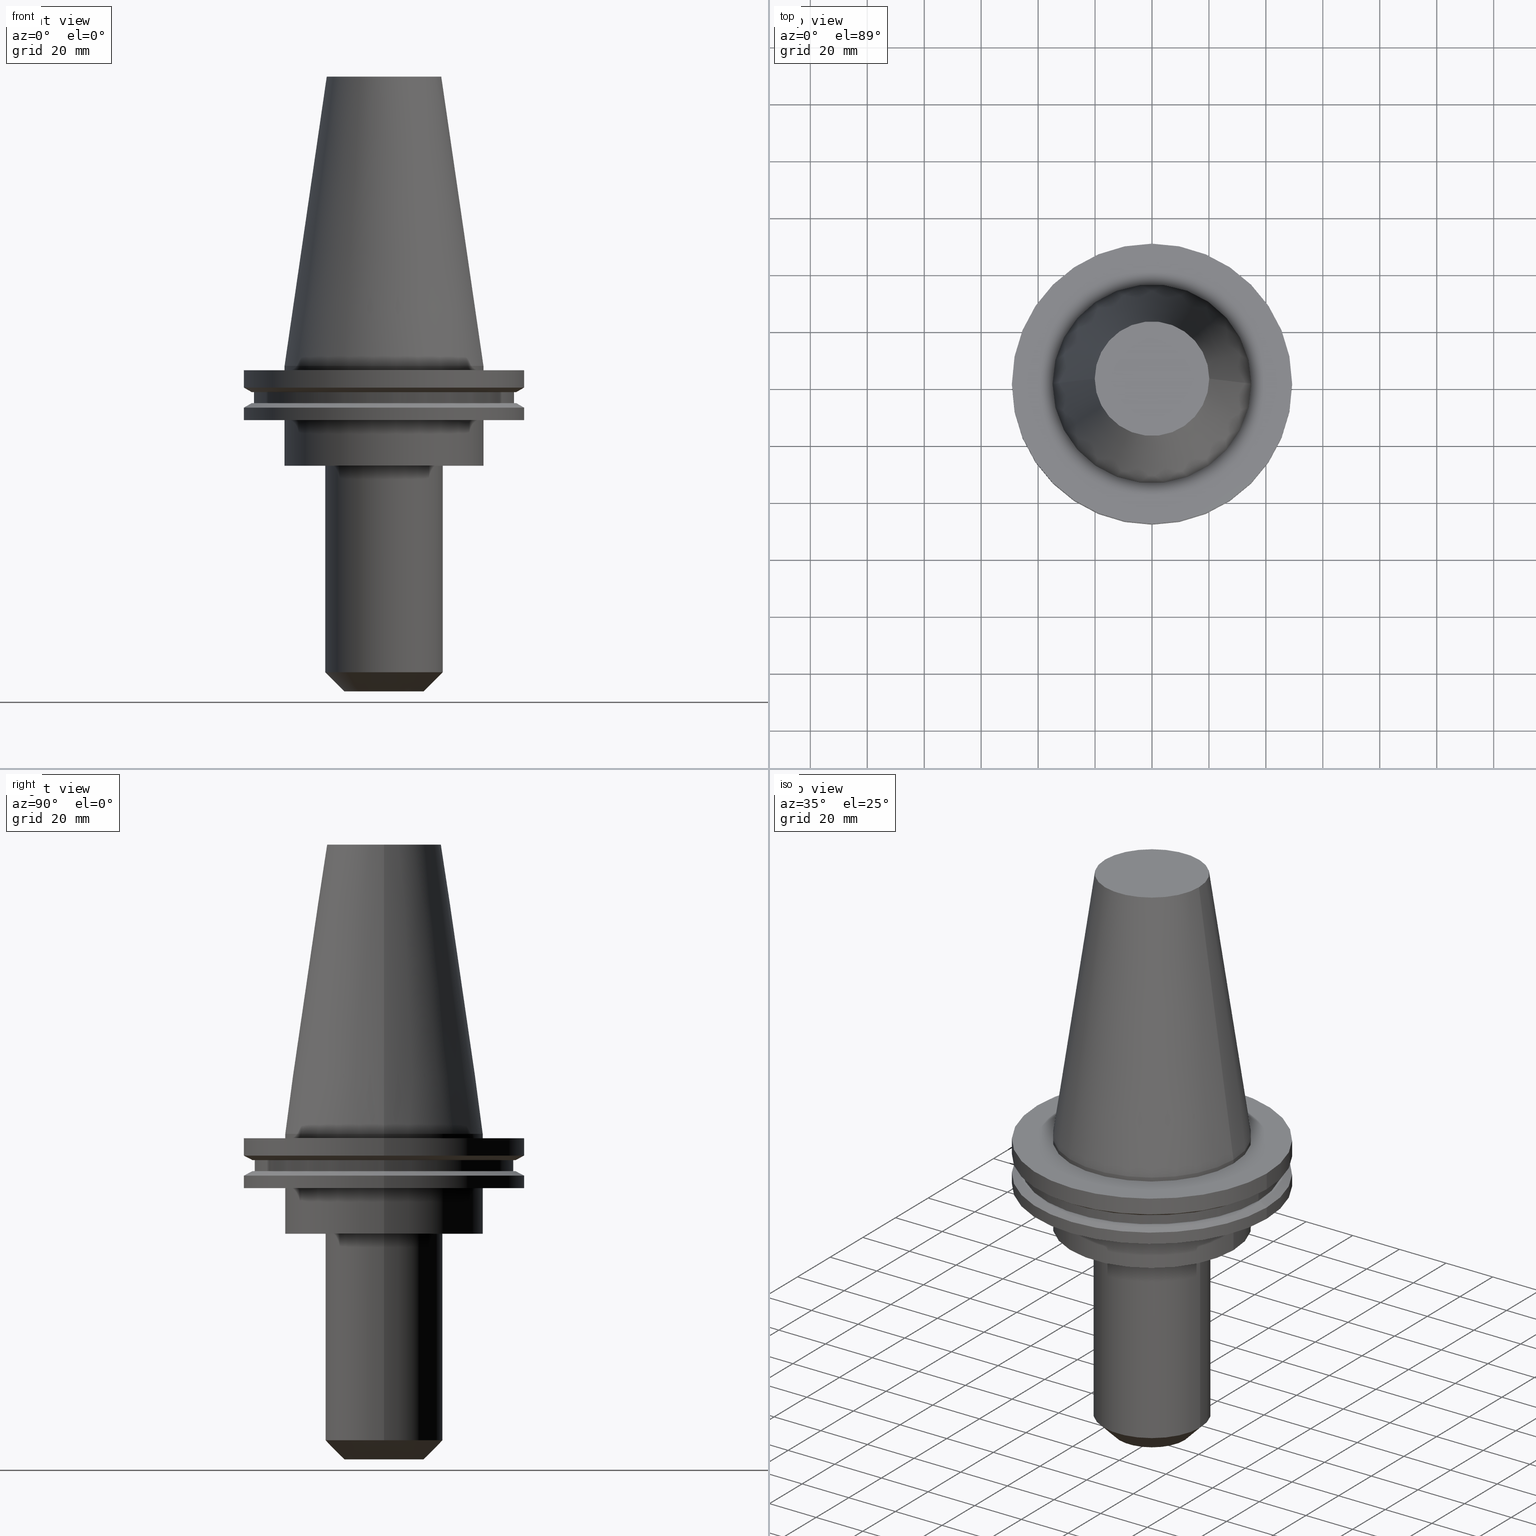
[diagram: canonical four-view strip — front | top / right | iso, engineering-drawing reading convention]
A machine part, canonical four-view strip (front | top / right | iso — engineering-drawing reading convention). The complete STEP part file that produces these views, byte-faithful:
ISO-10303-21;
HEADER;
FILE_DESCRIPTION (( 'STEP AP203' ),
    '1' );
FILE_NAME ('BCV50-EM_625-4_5.stp',
    '2022-03-03T16:44:21',
    ( '' ),
    ( '' ),
    'SwSTEP 2.0',
    'SolidWorks 2021',
    '' );
FILE_SCHEMA (( 'CONFIG_CONTROL_DESIGN' ));
ENDSEC;

DATA;
#1 = FACE_OUTER_BOUND ( 'NONE', #496, .T. ) ;
#2 = FACE_OUTER_BOUND ( 'NONE', #224, .T. ) ;
#3 = DIRECTION ( 'NONE',  ( -0.000000000000000000, -0.000000000000000000, 1.000000000000000000 ) ) ;
#4 = ORIENTED_EDGE ( 'NONE', *, *, #390, .F. ) ;
#5 = ADVANCED_FACE ( 'NONE', ( #507 ), #197, .F. ) ;
#6 = CARTESIAN_POINT ( 'NONE',  ( 0.000000000000000000, 0.000000000000000000, 101.5999999999999943 ) ) ;
#7 = EDGE_CURVE ( 'NONE', #578, #457, #670, .T. ) ;
#8 = DIRECTION ( 'NONE',  ( 1.000000000000000000, 0.000000000000000000, 0.000000000000000000 ) ) ;
#9 = LOCAL_TIME ( 10, 44, 21.00000000000000000, #72 ) ;
#10 = PERSON_AND_ORGANIZATION_ROLE ( 'classification_officer' ) ;
#11 = LINE ( 'NONE', #534, #520 ) ;
#12 = AXIS2_PLACEMENT_3D ( 'NONE', #279, #806, #411 ) ;
#13 = CARTESIAN_POINT ( 'NONE',  ( 0.000000000000000000, 0.000000000000000000, 101.5999999999999943 ) ) ;
#14 = AXIS2_PLACEMENT_3D ( 'NONE', #619, #172, #35 ) ;
#15 = CARTESIAN_POINT ( 'NONE',  ( 20.64999999999999147, 0.000000000000000000, 0.000000000000000000 ) ) ;
#16 = DIRECTION ( 'NONE',  ( -0.000000000000000000, -0.000000000000000000, 1.000000000000000000 ) ) ;
#17 = PERSON_AND_ORGANIZATION ( #393, #486 ) ;
#18 = LINE ( 'NONE', #221, #270 ) ;
#19 = LINE ( 'NONE', #67, #572 ) ;
#20 = PERSON_AND_ORGANIZATION_ROLE ( 'creator' ) ;
#21 = ORIENTED_EDGE ( 'NONE', *, *, #467, .F. ) ;
#22 = FACE_OUTER_BOUND ( 'NONE', #119, .T. ) ;
#23 = CIRCLE ( 'NONE', #466, 20.64999999999999147 ) ;
#24 = LINE ( 'NONE', #227, #375 ) ;
#25 = CIRCLE ( 'NONE', #333, 34.92499999999999716 ) ;
#26 = CIRCLE ( 'NONE', #506, 45.64500000000000313 ) ;
#27 = EDGE_LOOP ( 'NONE', ( #310, #188 ) ) ;
#28 = CARTESIAN_POINT ( 'NONE',  ( -46.43919780457007818, 0.000000000000000000, -13.05499999999999794 ) ) ;
#29 = DIRECTION ( 'NONE',  ( -0.000000000000000000, -0.000000000000000000, 1.000000000000000000 ) ) ;
#30 = EDGE_LOOP ( 'NONE', ( #418, #378 ) ) ;
#31 = DIRECTION ( 'NONE',  ( 0.000000000000000000, 0.000000000000000000, -1.000000000000000000 ) ) ;
#32 = ADVANCED_FACE ( 'NONE', ( #56 ), #249, .T. ) ;
#33 = DIRECTION ( 'NONE',  ( 1.000000000000000000, 0.000000000000000000, 0.000000000000000000 ) ) ;
#34 = VERTEX_POINT ( 'NONE', #327 ) ;
#35 = DIRECTION ( 'NONE',  ( 1.000000000000000000, 0.000000000000000000, 0.000000000000000000 ) ) ;
#36 = VERTEX_POINT ( 'NONE', #181 ) ;
#37 = FACE_OUTER_BOUND ( 'NONE', #234, .T. ) ;
#38 = ORIENTED_EDGE ( 'NONE', *, *, #543, .F. ) ;
#39 = VECTOR ( 'NONE', #70, 1000.000000000000000 ) ;
#40 = PRODUCT ( 'BCV50-EM_625-4_5', 'BCV50-EM_625-4_5', '', ( #637 ) ) ;
#41 = PLANE ( 'NONE',  #796 ) ;
#42 = ORIENTED_EDGE ( 'NONE', *, *, #427, .F. ) ;
#43 = DIRECTION ( 'NONE',  ( -1.000000000000000000, 0.000000000000000000, 0.000000000000000000 ) ) ;
#44 = ORIENTED_EDGE ( 'NONE', *, *, #795, .F. ) ;
#45 = EDGE_CURVE ( 'NONE', #825, #254, #305, .T. ) ;
#46 = CARTESIAN_POINT ( 'NONE',  ( 0.000000000000000000, 45.64500000000000313, -13.05499999999999794 ) ) ;
#47 = ORIENTED_EDGE ( 'NONE', *, *, #113, .T. ) ;
#48 = DIRECTION ( 'NONE',  ( 0.000000000000000000, 0.000000000000000000, -1.000000000000000000 ) ) ;
#49 = DIRECTION ( 'NONE',  ( -0.000000000000000000, -0.000000000000000000, 1.000000000000000000 ) ) ;
#50 = ORIENTED_EDGE ( 'NONE', *, *, #178, .F. ) ;
#51 = CIRCLE ( 'NONE', #606, 20.64999999999999503 ) ;
#52 = ORIENTED_EDGE ( 'NONE', *, *, #605, .F. ) ;
#53 = DIRECTION ( 'NONE',  ( 0.1443082272672999988, 1.767266086135277066E-17, -0.9895327864921755756 ) ) ;
#54 = EDGE_LOOP ( 'NONE', ( #690, #817, #121, #833 ) ) ;
#55 = LINE ( 'NONE', #656, #39 ) ;
#56 = FACE_OUTER_BOUND ( 'NONE', #422, .T. ) ;
#57 = DIRECTION ( 'NONE',  ( -0.000000000000000000, -0.000000000000000000, 1.000000000000000000 ) ) ;
#58 = ORIENTED_EDGE ( 'NONE', *, *, #182, .F. ) ;
#59 = CARTESIAN_POINT ( 'NONE',  ( -49.21499999999999631, 6.027099222003697826E-15, 101.5999999999999943 ) ) ;
#60 = ORIENTED_EDGE ( 'NONE', *, *, #521, .T. ) ;
#61 = AXIS2_PLACEMENT_3D ( 'NONE', #604, #233, #497 ) ;
#62 = PLANE ( 'NONE',  #424 ) ;
#63 = AXIS2_PLACEMENT_3D ( 'NONE', #410, #743, #801 ) ;
#64 = DIRECTION ( 'NONE',  ( -0.000000000000000000, -0.000000000000000000, 1.000000000000000000 ) ) ;
#65 = EDGE_CURVE ( 'NONE', #576, #36, #775, .T. ) ;
#66 = APPROVAL_STATUS ( 'not_yet_approved' ) ;
#67 = CARTESIAN_POINT ( 'NONE',  ( 49.21499999999999631, 0.000000000000000000, 101.5999999999999943 ) ) ;
#68 = EDGE_LOOP ( 'NONE', ( #462, #628, #110, #370 ) ) ;
#69 = ADVANCED_FACE ( 'NONE', ( #640 ), #518, .T. ) ;
#70 = DIRECTION ( 'NONE',  ( -0.000000000000000000, -0.000000000000000000, 1.000000000000000000 ) ) ;
#71 = CARTESIAN_POINT ( 'NONE',  ( 0.000000000000000000, 0.000000000000000000, 0.000000000000000000 ) ) ;
#72 = COORDINATED_UNIVERSAL_TIME_OFFSET ( 6, 0, .BEHIND. ) ;
#73 = DIRECTION ( 'NONE',  ( -0.000000000000000000, -0.000000000000000000, 1.000000000000000000 ) ) ;
#74 = DIRECTION ( 'NONE',  ( 1.000000000000000000, 0.000000000000000000, 0.000000000000000000 ) ) ;
#75 = VECTOR ( 'NONE', #851, 1000.000000000000000 ) ;
#76 = VECTOR ( 'NONE', #406, 1000.000000000000000 ) ;
#77 = VECTOR ( 'NONE', #275, 1000.000000000000000 ) ;
#78 = AXIS2_PLACEMENT_3D ( 'NONE', #694, #753, #490 ) ;
#79 = DIRECTION ( 'NONE',  ( -0.000000000000000000, -0.000000000000000000, 1.000000000000000000 ) ) ;
#80 = DIRECTION ( 'NONE',  ( -0.000000000000000000, -0.000000000000000000, 1.000000000000000000 ) ) ;
#81 = CARTESIAN_POINT ( 'NONE',  ( 0.000000000000000000, 0.000000000000000000, -13.05499999999999794 ) ) ;
#82 = FACE_BOUND ( 'NONE', #307, .T. ) ;
#83 = ORIENTED_EDGE ( 'NONE', *, *, #161, .T. ) ;
#84 = CARTESIAN_POINT ( 'NONE',  ( -49.21499999999998920, 6.027099222003697037E-15, -19.04999999999999716 ) ) ;
#85 = DIRECTION ( 'NONE',  ( -0.000000000000000000, -0.000000000000000000, 1.000000000000000000 ) ) ;
#86 = UNCERTAINTY_MEASURE_WITH_UNIT (LENGTH_MEASURE( 1.000000000000000082E-05 ), #193, 'distance_accuracy_value', 'NONE');
#87 = ADVANCED_FACE ( 'NONE', ( #636 ), #203, .T. ) ;
#88 = CIRCLE ( 'NONE', #562, 34.92499999999999716 ) ;
#89 = FACE_OUTER_BOUND ( 'NONE', #30, .T. ) ;
#90 = AXIS2_PLACEMENT_3D ( 'NONE', #719, #790, #381 ) ;
#91 = CARTESIAN_POINT ( 'NONE',  ( 46.43919780457007818, 0.000000000000000000, -9.204999999999991189 ) ) ;
#92 = ORIENTED_EDGE ( 'NONE', *, *, #477, .T. ) ;
#93 = DIRECTION ( 'NONE',  ( 1.000000000000000000, 0.000000000000000000, 0.000000000000000000 ) ) ;
#94 = ADVANCED_FACE ( 'NONE', ( #343, #2 ), #340, .F. ) ;
#95 = FACE_OUTER_BOUND ( 'NONE', #755, .T. ) ;
#96 = EDGE_LOOP ( 'NONE', ( #220, #655, #445, #430 ) ) ;
#97 = APPROVAL_PERSON_ORGANIZATION ( #401, #294, #338 ) ;
#98 = CARTESIAN_POINT ( 'NONE',  ( -20.64999999999999147, 2.528895640239283334E-15, 0.000000000000000000 ) ) ;
#99 = CC_DESIGN_DATE_AND_TIME_ASSIGNMENT ( #263, #525, ( #561 ) ) ;
#100 = DIRECTION ( 'NONE',  ( 0.000000000000000000, 0.000000000000000000, -1.000000000000000000 ) ) ;
#101 = DIRECTION ( 'NONE',  ( -0.000000000000000000, -0.000000000000000000, 1.000000000000000000 ) ) ;
#102 = ORIENTED_EDGE ( 'NONE', *, *, #218, .F. ) ;
#103 = FACE_OUTER_BOUND ( 'NONE', #96, .T. ) ;
#104 = ORIENTED_EDGE ( 'NONE', *, *, #674, .T. ) ;
#105 = DIRECTION ( 'NONE',  ( -0.000000000000000000, -0.000000000000000000, 1.000000000000000000 ) ) ;
#106 = EDGE_LOOP ( 'NONE', ( #426, #532, #47, #238 ) ) ;
#107 = DIRECTION ( 'NONE',  ( 1.000000000000000000, 0.000000000000000000, 0.000000000000000000 ) ) ;
#108 = EDGE_CURVE ( 'NONE', #173, #704, #793, .T. ) ;
#109 = CARTESIAN_POINT ( 'NONE',  ( 0.000000000000000000, 0.000000000000000000, 101.5999999999999943 ) ) ;
#110 = ORIENTED_EDGE ( 'NONE', *, *, #662, .T. ) ;
#111 = CC_DESIGN_APPROVAL ( #514, ( #561 ) ) ;
#112 = ORIENTED_EDGE ( 'NONE', *, *, #750, .T. ) ;
#113 = EDGE_CURVE ( 'NONE', #316, #292, #523, .T. ) ;
#114 =( NAMED_UNIT ( * ) PLANE_ANGLE_UNIT ( ) SI_UNIT ( $, .RADIAN. ) );
#115 = AXIS2_PLACEMENT_3D ( 'NONE', #209, #79, #213 ) ;
#116 = CONICAL_SURFACE ( 'NONE', #595, 49.21499999999998920, 1.047197551196554333 ) ;
#117 = AXIS2_PLACEMENT_3D ( 'NONE', #672, #139, #481 ) ;
#118 = DIRECTION ( 'NONE',  ( 1.000000000000000000, 0.000000000000000000, 0.000000000000000000 ) ) ;
#119 = EDGE_LOOP ( 'NONE', ( #746, #44 ) ) ;
#120 = AXIS2_PLACEMENT_3D ( 'NONE', #251, #123, #644 ) ;
#121 = ORIENTED_EDGE ( 'NONE', *, *, #317, .F. ) ;
#122 = CARTESIAN_POINT ( 'NONE',  ( 0.000000000000000000, 0.000000000000000000, 101.5999999999999943 ) ) ;
#123 = DIRECTION ( 'NONE',  ( 0.000000000000000000, 0.000000000000000000, -1.000000000000000000 ) ) ;
#124 = ORIENTED_EDGE ( 'NONE', *, *, #409, .F. ) ;
#125 = ADVANCED_FACE ( 'NONE', ( #141 ), #527, .T. ) ;
#126 = ORIENTED_EDGE ( 'NONE', *, *, #357, .T. ) ;
#127 = APPROVAL_ROLE ( '' ) ;
#128 = AXIS2_PLACEMENT_3D ( 'NONE', #148, #416, #551 ) ;
#129 = CARTESIAN_POINT ( 'NONE',  ( -20.10819343178871321, 0.000000000000000000, 101.5999999999999801 ) ) ;
#130 = VECTOR ( 'NONE', #53, 999.9999999999998863 ) ;
#131 = CIRCLE ( 'NONE', #142, 49.21500000000000341 ) ;
#132 = DIRECTION ( 'NONE',  ( -0.000000000000000000, -0.000000000000000000, 1.000000000000000000 ) ) ;
#133 = EDGE_CURVE ( 'NONE', #292, #316, #712, .T. ) ;
#134 = DIRECTION ( 'NONE',  ( 1.000000000000000000, 0.000000000000000000, 0.000000000000000000 ) ) ;
#135 = CC_DESIGN_DATE_AND_TIME_ASSIGNMENT ( #204, #149, ( #267 ) ) ;
#136 = FACE_OUTER_BOUND ( 'NONE', #205, .T. ) ;
#137 = DIRECTION ( 'NONE',  ( -1.000000000000000000, 0.000000000000000000, -0.000000000000000000 ) ) ;
#138 = ORIENTED_EDGE ( 'NONE', *, *, #300, .F. ) ;
#139 = DIRECTION ( 'NONE',  ( -0.000000000000000000, -0.000000000000000000, 1.000000000000000000 ) ) ;
#140 = AXIS2_PLACEMENT_3D ( 'NONE', #815, #618, #291 ) ;
#141 = FACE_OUTER_BOUND ( 'NONE', #598, .T. ) ;
#142 = AXIS2_PLACEMENT_3D ( 'NONE', #303, #101, #225 ) ;
#143 = APPROVAL_DATE_TIME ( #675, #843 ) ;
#144 = ORIENTED_EDGE ( 'NONE', *, *, #178, .T. ) ;
#145 = DIRECTION ( 'NONE',  ( 1.000000000000000000, 0.000000000000000000, 0.000000000000000000 ) ) ;
#146 = AXIS2_PLACEMENT_3D ( 'NONE', #13, #80, #597 ) ;
#147 = EDGE_CURVE ( 'NONE', #556, #576, #530, .T. ) ;
#148 = CARTESIAN_POINT ( 'NONE',  ( 0.000000000000000000, 0.000000000000000000, -1.499999999999987566 ) ) ;
#149 = DATE_TIME_ROLE ( 'classification_date' ) ;
#150 = ORIENTED_EDGE ( 'NONE', *, *, #65, .F. ) ;
#151 = DIRECTION ( 'NONE',  ( -0.000000000000000000, -0.000000000000000000, 1.000000000000000000 ) ) ;
#152 = FACE_OUTER_BOUND ( 'NONE', #574, .T. ) ;
#153 = EDGE_CURVE ( 'NONE', #432, #292, #414, .T. ) ;
#154 = APPROVAL_PERSON_ORGANIZATION ( #855, #514, #127 ) ;
#155 = EDGE_LOOP ( 'NONE', ( #812, #581, #820, #138 ) ) ;
#156 = ORIENTED_EDGE ( 'NONE', *, *, #212, .F. ) ;
#157 = DIRECTION ( 'NONE',  ( 1.000000000000000000, 0.000000000000000000, 0.000000000000000000 ) ) ;
#158 = DIRECTION ( 'NONE',  ( -0.000000000000000000, -0.000000000000000000, 1.000000000000000000 ) ) ;
#159 = CIRCLE ( 'NONE', #621, 45.64500000000000313 ) ;
#160 = ORIENTED_EDGE ( 'NONE', *, *, #464, .T. ) ;
#161 = EDGE_CURVE ( 'NONE', #811, #798, #371, .T. ) ;
#162 = LINE ( 'NONE', #98, #560 ) ;
#163 = ORIENTED_EDGE ( 'NONE', *, *, #383, .T. ) ;
#164 = CARTESIAN_POINT ( 'NONE',  ( -34.92499999999999716, 4.277078946022130887E-15, -35.04999999999999716 ) ) ;
#165 = CARTESIAN_POINT ( 'NONE',  ( 20.10819343178871321, 3.369811209154858606E-15, 101.5999999999999801 ) ) ;
#166 = EDGE_LOOP ( 'NONE', ( #345, #392 ) ) ;
#167 = EDGE_CURVE ( 'NONE', #432, #749, #451, .T. ) ;
#168 = DIRECTION ( 'NONE',  ( 1.000000000000000000, 0.000000000000000000, 0.000000000000000000 ) ) ;
#169 = ORIENTED_EDGE ( 'NONE', *, *, #701, .T. ) ;
#170 = CARTESIAN_POINT ( 'NONE',  ( 0.000000000000000000, 0.000000000000000000, 101.5999999999999801 ) ) ;
#171 = ORIENTED_EDGE ( 'NONE', *, *, #404, .F. ) ;
#172 = DIRECTION ( 'NONE',  ( -0.000000000000000000, -0.000000000000000000, 1.000000000000000000 ) ) ;
#173 = VERTEX_POINT ( 'NONE', #407 ) ;
#174 = ADVANCED_FACE ( 'NONE', ( #653 ), #657, .F. ) ;
#175 = CARTESIAN_POINT ( 'NONE',  ( 0.000000000000000000, 0.000000000000000000, -19.04999999999999716 ) ) ;
#176 = AXIS2_PLACEMENT_3D ( 'NONE', #744, #559, #425 ) ;
#177 = DIRECTION ( 'NONE',  ( 1.000000000000000000, 0.000000000000000000, 0.000000000000000000 ) ) ;
#178 = EDGE_CURVE ( 'NONE', #513, #34, #673, .T. ) ;
#179 = CARTESIAN_POINT ( 'NONE',  ( 0.000000000000000000, 0.000000000000000000, -13.05499999999999794 ) ) ;
#180 = CARTESIAN_POINT ( 'NONE',  ( 34.92499999999999716, 0.000000000000000000, -19.04999999999999716 ) ) ;
#181 = CARTESIAN_POINT ( 'NONE',  ( 49.21499999999998920, 0.000000000000000000, -14.65761014474876944 ) ) ;
#182 = EDGE_CURVE ( 'NONE', #194, #811, #19, .T. ) ;
#183 = DIRECTION ( 'NONE',  ( 1.000000000000000000, 0.000000000000000000, 0.000000000000000000 ) ) ;
#184 = CC_DESIGN_APPROVAL ( #843, ( #267 ) ) ;
#185 = DIRECTION ( 'NONE',  ( 1.000000000000000000, 0.000000000000000000, 0.000000000000000000 ) ) ;
#186 = CARTESIAN_POINT ( 'NONE',  ( 0.000000000000000000, 0.000000000000000000, 101.5999999999999943 ) ) ;
#187 = COORDINATED_UNIVERSAL_TIME_OFFSET ( 6, 0, .BEHIND. ) ;
#188 = ORIENTED_EDGE ( 'NONE', *, *, #592, .F. ) ;
#189 = AXIS2_PLACEMENT_3D ( 'NONE', #842, #510, #444 ) ;
#190 = CARTESIAN_POINT ( 'NONE',  ( 0.000000000000000000, 0.000000000000000000, -9.204999999999991189 ) ) ;
#191 = AXIS2_PLACEMENT_3D ( 'NONE', #293, #495, #759 ) ;
#192 = DIRECTION ( 'NONE',  ( 1.000000000000000000, 0.000000000000000000, 0.000000000000000000 ) ) ;
#193 =( LENGTH_UNIT ( ) NAMED_UNIT ( * ) SI_UNIT ( .MILLI., .METRE. ) );
#194 = VERTEX_POINT ( 'NONE', #791 ) ;
#195 = ADVANCED_FACE ( 'NONE', ( #470 ), #730, .T. ) ;
#196 = DIRECTION ( 'NONE',  ( 1.000000000000000000, 0.000000000000000000, 0.000000000000000000 ) ) ;
#197 = PLANE ( 'NONE',  #90 ) ;
#198 = CARTESIAN_POINT ( 'NONE',  ( -46.43919780457007818, 5.687161494633754392E-15, -9.204999999999991189 ) ) ;
#199 = VERTEX_POINT ( 'NONE', #215 ) ;
#200 = DIRECTION ( 'NONE',  ( -0.7071067811865486830, 8.659560562354947649E-17, 0.7071067811865464625 ) ) ;
#201 = CONICAL_SURFACE ( 'NONE', #189, 13.94999999999997620, 0.7853981633974498333 ) ;
#202 = CARTESIAN_POINT ( 'NONE',  ( -49.21499999999998920, 6.027099222003697037E-15, 101.5999999999999943 ) ) ;
#203 = CONICAL_SURFACE ( 'NONE', #120, 34.92499999999999005, 0.1448138465474119452 ) ;
#204 = DATE_AND_TIME ( #601, #9 ) ;
#205 = EDGE_LOOP ( 'NONE', ( #42, #226, #852, #784 ) ) ;
#206 = DIRECTION ( 'NONE',  ( -0.8660254037844169472, 0.000000000000000000, -0.5000000000000375255 ) ) ;
#207 = DIRECTION ( 'NONE',  ( -0.000000000000000000, -0.000000000000000000, 1.000000000000000000 ) ) ;
#208 = ORIENTED_EDGE ( 'NONE', *, *, #212, .T. ) ;
#209 = CARTESIAN_POINT ( 'NONE',  ( 0.000000000000000000, 0.000000000000000000, -35.04999999999999716 ) ) ;
#210 = DIRECTION ( 'NONE',  ( -0.000000000000000000, -0.000000000000000000, 1.000000000000000000 ) ) ;
#211 = ORIENTED_EDGE ( 'NONE', *, *, #617, .T. ) ;
#212 = EDGE_CURVE ( 'NONE', #695, #358, #23, .T. ) ;
#213 = DIRECTION ( 'NONE',  ( 1.000000000000000000, 0.000000000000000000, 0.000000000000000000 ) ) ;
#214 = CONICAL_SURFACE ( 'NONE', #769, 13.94999999999997620, 0.7853981633974498333 ) ;
#215 = CARTESIAN_POINT ( 'NONE',  ( 49.21499999999998920, 0.000000000000000000, -19.04999999999999716 ) ) ;
#216 = PERSON_AND_ORGANIZATION_ROLE ( 'design_supplier' ) ;
#217 = CARTESIAN_POINT ( 'NONE',  ( -34.92499999999999005, 0.000000000000000000, 0.000000000000000000 ) ) ;
#218 = EDGE_CURVE ( 'NONE', #330, #173, #531, .T. ) ;
#219 = DIRECTION ( 'NONE',  ( 1.000000000000000000, 0.000000000000000000, 0.000000000000000000 ) ) ;
#220 = ORIENTED_EDGE ( 'NONE', *, *, #765, .F. ) ;
#221 = CARTESIAN_POINT ( 'NONE',  ( -45.64500000000000313, 5.589900314708094957E-15, 101.5999999999999943 ) ) ;
#222 = CYLINDRICAL_SURFACE ( 'NONE', #140, 49.21499999999998920 ) ;
#223 =( GEOMETRIC_REPRESENTATION_CONTEXT ( 3 ) GLOBAL_UNCERTAINTY_ASSIGNED_CONTEXT ( ( #86 ) ) GLOBAL_UNIT_ASSIGNED_CONTEXT ( ( #193, #114, #715 ) ) REPRESENTATION_CONTEXT ( 'NONE', 'WORKASPACE' ) );
#224 = EDGE_LOOP ( 'NONE', ( #83, #648 ) ) ;
#225 = DIRECTION ( 'NONE',  ( 1.000000000000000000, 0.000000000000000000, 0.000000000000000000 ) ) ;
#226 = ORIENTED_EDGE ( 'NONE', *, *, #7, .F. ) ;
#227 = CARTESIAN_POINT ( 'NONE',  ( 34.92499999999999005, 0.000000000000000000, 101.5999999999999943 ) ) ;
#228 = CIRCLE ( 'NONE', #115, 34.92499999999999716 ) ;
#229 = CC_DESIGN_PERSON_AND_ORGANIZATION_ASSIGNMENT ( #742, #10, ( #267 ) ) ;
#230 = AXIS2_PLACEMENT_3D ( 'NONE', #81, #269, #599 ) ;
#231 = FACE_BOUND ( 'NONE', #528, .T. ) ;
#232 = ORIENTED_EDGE ( 'NONE', *, *, #308, .F. ) ;
#233 = DIRECTION ( 'NONE',  ( 0.000000000000000000, 0.000000000000000000, -1.000000000000000000 ) ) ;
#234 = EDGE_LOOP ( 'NONE', ( #384, #160, #714, #500 ) ) ;
#235 = CYLINDRICAL_SURFACE ( 'NONE', #259, 20.64999999999999147 ) ;
#236 = ORIENTED_EDGE ( 'NONE', *, *, #252, .F. ) ;
#237 = CARTESIAN_POINT ( 'NONE',  ( 0.000000000000000000, 0.000000000000000000, 0.000000000000000000 ) ) ;
#238 = ORIENTED_EDGE ( 'NONE', *, *, #153, .F. ) ;
#239 = CARTESIAN_POINT ( 'NONE',  ( 0.000000000000000000, 0.000000000000000000, 101.5999999999999943 ) ) ;
#240 = ORIENTED_EDGE ( 'NONE', *, *, #701, .F. ) ;
#241 = LINE ( 'NONE', #505, #75 ) ;
#242 = CARTESIAN_POINT ( 'NONE',  ( 0.000000000000000000, 0.000000000000000000, -14.65761014474876944 ) ) ;
#243 = AXIS2_PLACEMENT_3D ( 'NONE', #802, #210, #473 ) ;
#244 = DIRECTION ( 'NONE',  ( 1.000000000000000000, 0.000000000000000000, 0.000000000000000000 ) ) ;
#245 = CIRCLE ( 'NONE', #838, 34.92499999999999005 ) ;
#246 = ORIENTED_EDGE ( 'NONE', *, *, #467, .T. ) ;
#247 = ADVANCED_FACE ( 'NONE', ( #337 ), #479, .F. ) ;
#248 = AXIS2_PLACEMENT_3D ( 'NONE', #774, #844, #192 ) ;
#249 = CYLINDRICAL_SURFACE ( 'NONE', #428, 49.21499999999999631 ) ;
#250 = CARTESIAN_POINT ( 'NONE',  ( 49.21499999999998920, 6.027099222003697037E-15, -14.65761014474876944 ) ) ;
#251 = CARTESIAN_POINT ( 'NONE',  ( 0.000000000000000000, 0.000000000000000000, 0.000000000000000000 ) ) ;
#252 = EDGE_CURVE ( 'NONE', #798, #811, #285, .T. ) ;
#253 = DIRECTION ( 'NONE',  ( 0.8660254037844273833, 0.000000000000000000, 0.5000000000000195399 ) ) ;
#254 = VERTEX_POINT ( 'NONE', #435 ) ;
#255 = ORIENTED_EDGE ( 'NONE', *, *, #668, .F. ) ;
#256 = CONICAL_SURFACE ( 'NONE', #176, 46.43919780457007818, 1.047197551196575205 ) ;
#257 = CIRCLE ( 'NONE', #609, 34.92499999999999005 ) ;
#258 = FACE_OUTER_BOUND ( 'NONE', #564, .T. ) ;
#259 = AXIS2_PLACEMENT_3D ( 'NONE', #499, #626, #309 ) ;
#260 = ORIENTED_EDGE ( 'NONE', *, *, #550, .T. ) ;
#261 = VECTOR ( 'NONE', #646, 1000.000000000000000 ) ;
#262 = VECTOR ( 'NONE', #132, 1000.000000000000000 ) ;
#263 = DATE_AND_TIME ( #710, #278 ) ;
#264 = ADVANCED_FACE ( 'NONE', ( #152 ), #222, .T. ) ;
#265 = CARTESIAN_POINT ( 'NONE',  ( 0.000000000000000000, 0.000000000000000000, -35.04999999999999716 ) ) ;
#266 = CARTESIAN_POINT ( 'NONE',  ( 49.21499999999999631, 0.000000000000000000, -1.499999999999987566 ) ) ;
#267 = SECURITY_CLASSIFICATION ( '', '', #728 ) ;
#268 = CARTESIAN_POINT ( 'NONE',  ( 0.000000000000000000, 0.000000000000000000, -35.04999999999999716 ) ) ;
#269 = DIRECTION ( 'NONE',  ( -0.000000000000000000, -0.000000000000000000, 1.000000000000000000 ) ) ;
#270 = VECTOR ( 'NONE', #151, 1000.000000000000000 ) ;
#271 = EDGE_CURVE ( 'NONE', #173, #330, #734, .T. ) ;
#272 = DIRECTION ( 'NONE',  ( -0.000000000000000000, -0.000000000000000000, 1.000000000000000000 ) ) ;
#273 = ADVANCED_FACE ( 'NONE', ( #487 ), #214, .T. ) ;
#274 = CIRCLE ( 'NONE', #350, 49.21499999999998920 ) ;
#275 = DIRECTION ( 'NONE',  ( -0.000000000000000000, -0.000000000000000000, 1.000000000000000000 ) ) ;
#276 = DIRECTION ( 'NONE',  ( -0.000000000000000000, -0.000000000000000000, 1.000000000000000000 ) ) ;
#277 = DIRECTION ( 'NONE',  ( 1.000000000000000000, 0.000000000000000000, 0.000000000000000000 ) ) ;
#278 = LOCAL_TIME ( 10, 44, 21.00000000000000000, #187 ) ;
#279 = CARTESIAN_POINT ( 'NONE',  ( 0.000000000000000000, 0.000000000000000000, 101.5999999999999943 ) ) ;
#280 = DESIGN_CONTEXT ( 'detailed design', #545, 'design' ) ;
#281 = APPLICATION_CONTEXT ( 'configuration controlled 3d designs of mechanical parts and assemblies' ) ;
#282 = ORIENTED_EDGE ( 'NONE', *, *, #308, .T. ) ;
#283 = AXIS2_PLACEMENT_3D ( 'NONE', #726, #403, #134 ) ;
#284 = CARTESIAN_POINT ( 'NONE',  ( 0.000000000000000000, 46.43919780457007818, -9.204999999999998295 ) ) ;
#285 = CIRCLE ( 'NONE', #128, 49.21499999999999631 ) ;
#286 = CIRCLE ( 'NONE', #320, 34.92499999999999716 ) ;
#287 = CARTESIAN_POINT ( 'NONE',  ( 0.000000000000000000, 0.000000000000000000, 101.5999999999999801 ) ) ;
#288 = AXIS2_PLACEMENT_3D ( 'NONE', #781, #64, #569 ) ;
#289 = DIRECTION ( 'NONE',  ( 0.000000000000000000, 0.000000000000000000, -1.000000000000000000 ) ) ;
#290 = ADVANCED_FACE ( 'NONE', ( #565 ), #826, .F. ) ;
#291 = DIRECTION ( 'NONE',  ( 1.000000000000000000, 0.000000000000000000, 0.000000000000000000 ) ) ;
#292 = VERTEX_POINT ( 'NONE', #367 ) ;
#293 = CARTESIAN_POINT ( 'NONE',  ( 0.000000000000000000, 34.92499999999999716, -35.04999999999999716 ) ) ;
#294 = APPROVAL ( #66, 'UNSPECIFIED' ) ;
#295 = DIRECTION ( 'NONE',  ( -0.000000000000000000, -0.000000000000000000, 1.000000000000000000 ) ) ;
#296 = VERTEX_POINT ( 'NONE', #164 ) ;
#297 = CARTESIAN_POINT ( 'NONE',  ( -20.64999999999999503, 2.528895640239283728E-15, -107.5999999999999943 ) ) ;
#298 = ORIENTED_EDGE ( 'NONE', *, *, #515, .T. ) ;
#299 = DIRECTION ( 'NONE',  ( 1.000000000000000000, 0.000000000000000000, 0.000000000000000000 ) ) ;
#300 = EDGE_CURVE ( 'NONE', #704, #571, #51, .T. ) ;
#301 = AXIS2_PLACEMENT_3D ( 'NONE', #469, #289, #549 ) ;
#302 = AXIS2_PLACEMENT_3D ( 'NONE', #698, #105, #168 ) ;
#303 = CARTESIAN_POINT ( 'NONE',  ( 0.000000000000000000, 0.000000000000000000, -7.602389855251287187 ) ) ;
#304 = ORIENTED_EDGE ( 'NONE', *, *, #108, .T. ) ;
#305 = CIRCLE ( 'NONE', #288, 45.64500000000000313 ) ;
#306 = CARTESIAN_POINT ( 'NONE',  ( 0.000000000000000000, 7.939999999999995950, -114.2999999999999972 ) ) ;
#307 = EDGE_LOOP ( 'NONE', ( #455, #260 ) ) ;
#308 = EDGE_CURVE ( 'NONE', #808, #194, #476, .T. ) ;
#309 = DIRECTION ( 'NONE',  ( 1.000000000000000000, 0.000000000000000000, 0.000000000000000000 ) ) ;
#310 = ORIENTED_EDGE ( 'NONE', *, *, #727, .F. ) ;
#311 = DIRECTION ( 'NONE',  ( -0.000000000000000000, -0.000000000000000000, 1.000000000000000000 ) ) ;
#312 = DIRECTION ( 'NONE',  ( -0.000000000000000000, -0.000000000000000000, 1.000000000000000000 ) ) ;
#313 = ORIENTED_EDGE ( 'NONE', *, *, #814, .T. ) ;
#314 = ADVANCED_FACE ( 'NONE', ( #37 ), #696, .T. ) ;
#315 = CARTESIAN_POINT ( 'NONE',  ( -34.92499999999999716, 4.277078946022130887E-15, -19.04999999999999716 ) ) ;
#316 = VERTEX_POINT ( 'NONE', #688 ) ;
#317 = EDGE_CURVE ( 'NONE', #254, #825, #159, .T. ) ;
#318 = ORIENTED_EDGE ( 'NONE', *, *, #153, .T. ) ;
#319 = AXIS2_PLACEMENT_3D ( 'NONE', #190, #459, #118 ) ;
#320 = AXIS2_PLACEMENT_3D ( 'NONE', #175, #295, #33 ) ;
#321 = FACE_OUTER_BOUND ( 'NONE', #693, .T. ) ;
#322 = VERTEX_POINT ( 'NONE', #91 ) ;
#323 = AXIS2_PLACEMENT_3D ( 'NONE', #268, #276, #8 ) ;
#324 = DIRECTION ( 'NONE',  ( 1.000000000000000000, 0.000000000000000000, 0.000000000000000000 ) ) ;
#325 = PERSON_AND_ORGANIZATION ( #393, #486 ) ;
#326 = ADVANCED_FACE ( 'NONE', ( #95 ), #256, .T. ) ;
#327 = CARTESIAN_POINT ( 'NONE',  ( -34.92499999999999005, 0.000000000000000000, 0.000000000000000000 ) ) ;
#328 = APPROVAL_PERSON_ORGANIZATION ( #664, #843, #344 ) ;
#329 = DATE_AND_TIME ( #845, #645 ) ;
#330 = VERTEX_POINT ( 'NONE', #760 ) ;
#331 = DIRECTION ( 'NONE',  ( -1.000000000000000000, 0.000000000000000000, 0.000000000000000000 ) ) ;
#332 = ORIENTED_EDGE ( 'NONE', *, *, #379, .T. ) ;
#333 = AXIS2_PLACEMENT_3D ( 'NONE', #841, #57, #185 ) ;
#334 = VECTOR ( 'NONE', #356, 1000.000000000000000 ) ;
#335 = CARTESIAN_POINT ( 'NONE',  ( 0.000000000000000000, 0.000000000000000000, 0.000000000000000000 ) ) ;
#336 = AXIS2_PLACEMENT_3D ( 'NONE', #352, #474, #805 ) ;
#337 = FACE_OUTER_BOUND ( 'NONE', #106, .T. ) ;
#338 = APPROVAL_ROLE ( '' ) ;
#339 = ORIENTED_EDGE ( 'NONE', *, *, #633, .T. ) ;
#340 = PLANE ( 'NONE',  #725 ) ;
#341 = CC_DESIGN_PERSON_AND_ORGANIZATION_ASSIGNMENT ( #783, #587, ( #561 ) ) ;
#342 = CARTESIAN_POINT ( 'NONE',  ( 0.000000000000000000, 0.000000000000000000, 0.000000000000000000 ) ) ;
#343 = FACE_BOUND ( 'NONE', #777, .T. ) ;
#344 = APPROVAL_ROLE ( '' ) ;
#345 = ORIENTED_EDGE ( 'NONE', *, *, #133, .F. ) ;
#346 = CARTESIAN_POINT ( 'NONE',  ( 0.000000000000000000, 0.000000000000000000, 0.000000000000000000 ) ) ;
#347 = AXIS2_PLACEMENT_3D ( 'NONE', #284, #591, #544 ) ;
#348 = MANIFOLD_SOLID_BREP ( 'EM', #443 ) ;
#349 = CARTESIAN_POINT ( 'NONE',  ( -34.92499999999999005, 4.277078946022130098E-15, 101.5999999999999943 ) ) ;
#350 = AXIS2_PLACEMENT_3D ( 'NONE', #570, #835, #244 ) ;
#351 = ORIENTED_EDGE ( 'NONE', *, *, #795, .T. ) ;
#352 = CARTESIAN_POINT ( 'NONE',  ( 0.000000000000000000, 0.000000000000000000, -114.2999999999999972 ) ) ;
#353 = DIRECTION ( 'NONE',  ( 1.000000000000000000, 0.000000000000000000, 0.000000000000000000 ) ) ;
#354 = EDGE_LOOP ( 'NONE', ( #102, #671 ) ) ;
#355 = LINE ( 'NONE', #537, #387 ) ;
#356 = DIRECTION ( 'NONE',  ( -0.000000000000000000, -0.000000000000000000, 1.000000000000000000 ) ) ;
#357 = EDGE_CURVE ( 'NONE', #460, #489, #752, .T. ) ;
#358 = VERTEX_POINT ( 'NONE', #363 ) ;
#359 = DIRECTION ( 'NONE',  ( 0.000000000000000000, 0.000000000000000000, -1.000000000000000000 ) ) ;
#360 = CARTESIAN_POINT ( 'NONE',  ( 0.000000000000000000, 0.000000000000000000, -13.05499999999999794 ) ) ;
#361 = ADVANCED_FACE ( 'NONE', ( #483, #82 ), #766, .F. ) ;
#362 = CARTESIAN_POINT ( 'NONE',  ( -7.939999999999995950, 9.723695585229979204E-16, -114.2999999999999972 ) ) ;
#363 = CARTESIAN_POINT ( 'NONE',  ( 20.64999999999999147, 0.000000000000000000, -35.04999999999999716 ) ) ;
#364 = ORIENTED_EDGE ( 'NONE', *, *, #727, .T. ) ;
#365 = CARTESIAN_POINT ( 'NONE',  ( 34.92499999999999005, 4.277078946022130098E-15, 0.000000000000000000 ) ) ;
#366 = ORIENTED_EDGE ( 'NONE', *, *, #582, .T. ) ;
#367 = CARTESIAN_POINT ( 'NONE',  ( 7.939999999999992397, 0.000000000000000000, -35.04999999999999716 ) ) ;
#368 = LOCAL_TIME ( 10, 44, 21.00000000000000000, #405 ) ;
#369 = CARTESIAN_POINT ( 'NONE',  ( 34.92499999999999716, 0.000000000000000000, -35.04999999999999716 ) ) ;
#370 = ORIENTED_EDGE ( 'NONE', *, *, #575, .T. ) ;
#371 = CIRCLE ( 'NONE', #647, 49.21499999999999631 ) ;
#372 = DIRECTION ( 'NONE',  ( -0.000000000000000000, -0.000000000000000000, 1.000000000000000000 ) ) ;
#373 = EDGE_CURVE ( 'NONE', #840, #786, #286, .T. ) ;
#374 = CIRCLE ( 'NONE', #117, 49.21499999999998920 ) ;
#375 = VECTOR ( 'NONE', #85, 1000.000000000000000 ) ;
#376 = CARTESIAN_POINT ( 'NONE',  ( -45.64500000000000313, 5.589900314708094957E-15, -13.05499999999999794 ) ) ;
#377 = ORIENTED_EDGE ( 'NONE', *, *, #566, .F. ) ;
#378 = ORIENTED_EDGE ( 'NONE', *, *, #773, .F. ) ;
#379 = EDGE_CURVE ( 'NONE', #199, #36, #439, .T. ) ;
#380 = CARTESIAN_POINT ( 'NONE',  ( -20.64999999999999147, 2.528895640239283334E-15, -35.04999999999999716 ) ) ;
#381 = DIRECTION ( 'NONE',  ( 1.000000000000000000, 0.000000000000000000, 0.000000000000000000 ) ) ;
#382 = AXIS2_PLACEMENT_3D ( 'NONE', #335, #779, #183 ) ;
#383 = EDGE_CURVE ( 'NONE', #716, #711, #24, .T. ) ;
#384 = ORIENTED_EDGE ( 'NONE', *, *, #357, .F. ) ;
#385 = LINE ( 'NONE', #250, #388 ) ;
#386 = EDGE_LOOP ( 'NONE', ( #471, #126 ) ) ;
#387 = VECTOR ( 'NONE', #73, 1000.000000000000000 ) ;
#388 = VECTOR ( 'NONE', #846, 1000.000000000000114 ) ;
#389 = DIRECTION ( 'NONE',  ( -0.000000000000000000, -0.000000000000000000, 1.000000000000000000 ) ) ;
#390 = EDGE_CURVE ( 'NONE', #489, #460, #573, .T. ) ;
#391 = AXIS2_PLACEMENT_3D ( 'NONE', #239, #49, #157 ) ;
#392 = ORIENTED_EDGE ( 'NONE', *, *, #113, .F. ) ;
#393 = PERSON ( 'UNSPECIFIED', 'UNSPECIFIED', 'UNSPECIFIED', ('UNSPECIFIED'), ('UNSPECIFIED'), ('UNSPECIFIED') ) ;
#394 = DIRECTION ( 'NONE',  ( -0.000000000000000000, -0.000000000000000000, 1.000000000000000000 ) ) ;
#395 = DIRECTION ( 'NONE',  ( 1.000000000000000000, 0.000000000000000000, 0.000000000000000000 ) ) ;
#396 = PRODUCT_DEFINITION_FORMATION_WITH_SPECIFIED_SOURCE ( 'ANY', '', #40, .NOT_KNOWN. ) ;
#397 = CARTESIAN_POINT ( 'NONE',  ( -49.21499999999999631, 6.027099222003697826E-15, -1.499999999999987566 ) ) ;
#398 = DIRECTION ( 'NONE',  ( -0.000000000000000000, -0.000000000000000000, 1.000000000000000000 ) ) ;
#399 = VECTOR ( 'NONE', #669, 1000.000000000000000 ) ;
#400 = AXIS2_PLACEMENT_3D ( 'NONE', #287, #810, #219 ) ;
#401 = PERSON_AND_ORGANIZATION ( #393, #486 ) ;
#402 = AXIS2_PLACEMENT_3D ( 'NONE', #433, #553, #437 ) ;
#403 = DIRECTION ( 'NONE',  ( -0.000000000000000000, -0.000000000000000000, 1.000000000000000000 ) ) ;
#404 = EDGE_CURVE ( 'NONE', #771, #620, #26, .T. ) ;
#405 = COORDINATED_UNIVERSAL_TIME_OFFSET ( 6, 0, .BEHIND. ) ;
#406 = DIRECTION ( 'NONE',  ( -0.000000000000000000, -0.000000000000000000, 1.000000000000000000 ) ) ;
#407 = CARTESIAN_POINT ( 'NONE',  ( -13.94999999999997620, 2.118638962524919167E-15, -114.2999999999999972 ) ) ;
#408 = ORIENTED_EDGE ( 'NONE', *, *, #526, .F. ) ;
#409 = EDGE_CURVE ( 'NONE', #676, #840, #241, .T. ) ;
#410 = CARTESIAN_POINT ( 'NONE',  ( 0.000000000000000000, 0.000000000000000000, -107.5999999999999943 ) ) ;
#411 = DIRECTION ( 'NONE',  ( 1.000000000000000000, 0.000000000000000000, 0.000000000000000000 ) ) ;
#412 = FACE_BOUND ( 'NONE', #554, .T. ) ;
#413 = CC_DESIGN_PERSON_AND_ORGANIZATION_ASSIGNMENT ( #659, #216, ( #396 ) ) ;
#414 = LINE ( 'NONE', #468, #262 ) ;
#415 = CARTESIAN_POINT ( 'NONE',  ( -49.21499999999998920, 6.027099222003697037E-15, -14.65761014474876944 ) ) ;
#416 = DIRECTION ( 'NONE',  ( -0.000000000000000000, -0.000000000000000000, 1.000000000000000000 ) ) ;
#417 = ADVANCED_FACE ( 'NONE', ( #837 ), #201, .T. ) ;
#418 = ORIENTED_EDGE ( 'NONE', *, *, #521, .F. ) ;
#419 = DIRECTION ( 'NONE',  ( -0.1443082272672999988, 0.000000000000000000, -0.9895327864921755756 ) ) ;
#420 = DIRECTION ( 'NONE',  ( 1.000000000000000000, 0.000000000000000000, 0.000000000000000000 ) ) ;
#421 = ORIENTED_EDGE ( 'NONE', *, *, #477, .F. ) ;
#422 = EDGE_LOOP ( 'NONE', ( #700, #282, #679, #236 ) ) ;
#423 = CARTESIAN_POINT ( 'NONE',  ( 0.000000000000000000, 0.000000000000000000, -9.204999999999991189 ) ) ;
#424 = AXIS2_PLACEMENT_3D ( 'NONE', #585, #634, #463 ) ;
#425 = DIRECTION ( 'NONE',  ( 1.000000000000000000, 0.000000000000000000, 0.000000000000000000 ) ) ;
#426 = ORIENTED_EDGE ( 'NONE', *, *, #550, .F. ) ;
#427 = EDGE_CURVE ( 'NONE', #457, #36, #385, .T. ) ;
#428 = AXIS2_PLACEMENT_3D ( 'NONE', #186, #834, #324 ) ;
#429 = DIRECTION ( 'NONE',  ( 1.000000000000000000, 0.000000000000000000, 0.000000000000000000 ) ) ;
#430 = ORIENTED_EDGE ( 'NONE', *, *, #660, .F. ) ;
#431 = CARTESIAN_POINT ( 'NONE',  ( 0.000000000000000000, 0.000000000000000000, -107.5999999999999943 ) ) ;
#432 = VERTEX_POINT ( 'NONE', #713 ) ;
#433 = CARTESIAN_POINT ( 'NONE',  ( 0.000000000000000000, 0.000000000000000000, -13.05499999999999794 ) ) ;
#434 = EDGE_LOOP ( 'NONE', ( #246, #144, #584, #687 ) ) ;
#435 = CARTESIAN_POINT ( 'NONE',  ( 45.64500000000000313, 0.000000000000000000, -9.204999999999991189 ) ) ;
#436 = ORIENTED_EDGE ( 'NONE', *, *, #317, .T. ) ;
#437 = DIRECTION ( 'NONE',  ( 1.000000000000000000, 0.000000000000000000, 0.000000000000000000 ) ) ;
#438 = ADVANCED_FACE ( 'NONE', ( #258 ), #517, .T. ) ;
#439 = LINE ( 'NONE', #818, #334 ) ;
#440 = CARTESIAN_POINT ( 'NONE',  ( 0.000000000000000000, 0.000000000000000000, -1.499999999999987566 ) ) ;
#441 = CARTESIAN_POINT ( 'NONE',  ( -46.43919780457007818, 5.857130358318727293E-15, -9.204999999999991189 ) ) ;
#442 = EDGE_LOOP ( 'NONE', ( #763, #828 ) ) ;
#443 = CLOSED_SHELL ( 'NONE', ( #247, #273, #540, #69, #195, #326, #782, #449, #264, #125, #314, #740, #87, #290, #498, #488, #854, #624, #718, #772, #607, #482, #32, #94, #438, #778, #417, #361, #174, #5 ) ) ;
#444 = DIRECTION ( 'NONE',  ( 1.000000000000000000, 0.000000000000000000, 0.000000000000000000 ) ) ;
#445 = ORIENTED_EDGE ( 'NONE', *, *, #792, .T. ) ;
#446 = CYLINDRICAL_SURFACE ( 'NONE', #764, 49.21499999999998920 ) ;
#447 = ORIENTED_EDGE ( 'NONE', *, *, #404, .T. ) ;
#448 = ORIENTED_EDGE ( 'NONE', *, *, #409, .T. ) ;
#449 = ADVANCED_FACE ( 'NONE', ( #103 ), #116, .T. ) ;
#450 = DIRECTION ( 'NONE',  ( 1.000000000000000000, 0.000000000000000000, 0.000000000000000000 ) ) ;
#451 = CIRCLE ( 'NONE', #283, 7.939999999999995950 ) ;
#452 = ORIENTED_EDGE ( 'NONE', *, *, #668, .T. ) ;
#453 = AXIS2_PLACEMENT_3D ( 'NONE', #741, #586, #465 ) ;
#454 = APPLICATION_PROTOCOL_DEFINITION ( 'international standard', 'config_control_design', 1994, #281 ) ;
#455 = ORIENTED_EDGE ( 'NONE', *, *, #167, .T. ) ;
#456 = VECTOR ( 'NONE', #733, 1000.000000000000000 ) ;
#457 = VERTEX_POINT ( 'NONE', #789 ) ;
#458 = DIRECTION ( 'NONE',  ( 1.000000000000000000, 0.000000000000000000, 0.000000000000000000 ) ) ;
#459 = DIRECTION ( 'NONE',  ( -0.000000000000000000, -0.000000000000000000, 1.000000000000000000 ) ) ;
#460 = VERTEX_POINT ( 'NONE', #165 ) ;
#461 = LINE ( 'NONE', #651, #853 ) ;
#462 = ORIENTED_EDGE ( 'NONE', *, *, #674, .F. ) ;
#463 = DIRECTION ( 'NONE',  ( 1.000000000000000000, 0.000000000000000000, 0.000000000000000000 ) ) ;
#464 = EDGE_CURVE ( 'NONE', #460, #711, #692, .T. ) ;
#465 = DIRECTION ( 'NONE',  ( 1.000000000000000000, 0.000000000000000000, 0.000000000000000000 ) ) ;
#466 = AXIS2_PLACEMENT_3D ( 'NONE', #538, #663, #74 ) ;
#467 = EDGE_CURVE ( 'NONE', #716, #513, #478, .T. ) ;
#468 = CARTESIAN_POINT ( 'NONE',  ( 7.939999999999992397, 0.000000000000000000, 0.000000000000000000 ) ) ;
#469 = CARTESIAN_POINT ( 'NONE',  ( 0.000000000000000000, 0.000000000000000000, -14.65761014474876944 ) ) ;
#470 = FACE_OUTER_BOUND ( 'NONE', #652, .T. ) ;
#471 = ORIENTED_EDGE ( 'NONE', *, *, #390, .T. ) ;
#472 = CARTESIAN_POINT ( 'NONE',  ( 0.000000000000000000, 0.000000000000000000, -35.04999999999999716 ) ) ;
#473 = DIRECTION ( 'NONE',  ( 1.000000000000000000, 0.000000000000000000, 0.000000000000000000 ) ) ;
#474 = DIRECTION ( 'NONE',  ( -0.000000000000000000, -0.000000000000000000, 1.000000000000000000 ) ) ;
#475 = CIRCLE ( 'NONE', #63, 20.64999999999999503 ) ;
#476 = CIRCLE ( 'NONE', #723, 49.21500000000000341 ) ;
#477 = EDGE_CURVE ( 'NONE', #786, #840, #25, .T. ) ;
#478 = CIRCLE ( 'NONE', #751, 34.92499999999999005 ) ;
#479 = CYLINDRICAL_SURFACE ( 'NONE', #453, 7.939999999999992397 ) ;
#480 = CALENDAR_DATE ( 2022, 3, 3 ) ;
#481 = DIRECTION ( 'NONE',  ( 1.000000000000000000, 0.000000000000000000, 0.000000000000000000 ) ) ;
#482 = ADVANCED_FACE ( 'NONE', ( #1 ), #594, .T. ) ;
#483 = FACE_OUTER_BOUND ( 'NONE', #354, .T. ) ;
#484 = EDGE_LOOP ( 'NONE', ( #745, #304, #602, #377 ) ) ;
#485 = LINE ( 'NONE', #603, #754 ) ;
#486 = ORGANIZATION ( 'UNSPECIFIED', 'UNSPECIFIED', '' ) ;
#487 = FACE_OUTER_BOUND ( 'NONE', #484, .T. ) ;
#488 = ADVANCED_FACE ( 'NONE', ( #850, #717 ), #62, .F. ) ;
#489 = VERTEX_POINT ( 'NONE', #129 ) ;
#490 = DIRECTION ( 'NONE',  ( 1.000000000000000000, 0.000000000000000000, 0.000000000000000000 ) ) ;
#491 = ORIENTED_EDGE ( 'NONE', *, *, #662, .F. ) ;
#492 = CARTESIAN_POINT ( 'NONE',  ( 0.000000000000000000, 0.000000000000000000, -114.2999999999999972 ) ) ;
#493 = CIRCLE ( 'NONE', #735, 20.64999999999999147 ) ;
#494 = CIRCLE ( 'NONE', #302, 46.43919780457007818 ) ;
#495 = DIRECTION ( 'NONE',  ( 0.000000000000000000, -0.000000000000000000, 1.000000000000000000 ) ) ;
#496 = EDGE_LOOP ( 'NONE', ( #737, #351, #509, #232 ) ) ;
#497 = DIRECTION ( 'NONE',  ( -1.000000000000000000, 0.000000000000000000, -0.000000000000000000 ) ) ;
#498 = ADVANCED_FACE ( 'NONE', ( #721 ), #780, .T. ) ;
#499 = CARTESIAN_POINT ( 'NONE',  ( 0.000000000000000000, 0.000000000000000000, 0.000000000000000000 ) ) ;
#500 = ORIENTED_EDGE ( 'NONE', *, *, #617, .F. ) ;
#501 = DIRECTION ( 'NONE',  ( -0.000000000000000000, -0.000000000000000000, 1.000000000000000000 ) ) ;
#502 = ORIENTED_EDGE ( 'NONE', *, *, #133, .T. ) ;
#503 = CARTESIAN_POINT ( 'NONE',  ( 0.000000000000000000, 0.000000000000000000, -1.499999999999987566 ) ) ;
#504 = ORIENTED_EDGE ( 'NONE', *, *, #45, .T. ) ;
#505 = CARTESIAN_POINT ( 'NONE',  ( 34.92499999999999716, 0.000000000000000000, 101.5999999999999943 ) ) ;
#506 = AXIS2_PLACEMENT_3D ( 'NONE', #360, #311, #630 ) ;
#507 = FACE_OUTER_BOUND ( 'NONE', #166, .T. ) ;
#508 = PLANE ( 'NONE',  #191 ) ;
#509 = ORIENTED_EDGE ( 'NONE', *, *, #803, .T. ) ;
#510 = DIRECTION ( 'NONE',  ( -0.000000000000000000, -0.000000000000000000, 1.000000000000000000 ) ) ;
#511 = ADVANCED_BREP_SHAPE_REPRESENTATION ( 'BCV50-EM_625-4_5', ( #348, #382 ), #223 ) ;
#512 = ORIENTED_EDGE ( 'NONE', *, *, #147, .T. ) ;
#513 = VERTEX_POINT ( 'NONE', #639 ) ;
#514 = APPROVAL ( #577, 'UNSPECIFIED' ) ;
#515 = EDGE_CURVE ( 'NONE', #620, #254, #55, .T. ) ;
#516 = APPROVAL_DATE_TIME ( #329, #514 ) ;
#517 = CYLINDRICAL_SURFACE ( 'NONE', #794, 34.92499999999999005 ) ;
#518 = CYLINDRICAL_SURFACE ( 'NONE', #248, 34.92499999999999005 ) ;
#519 = VECTOR ( 'NONE', #419, 999.9999999999998863 ) ;
#520 = VECTOR ( 'NONE', #206, 1000.000000000000114 ) ;
#521 = EDGE_CURVE ( 'NONE', #676, #296, #228, .T. ) ;
#522 = APPLICATION_PROTOCOL_DEFINITION ( 'international standard', 'config_control_design', 1994, #545 ) ;
#523 = CIRCLE ( 'NONE', #684, 7.939999999999992397 ) ;
#524 = ORIENTED_EDGE ( 'NONE', *, *, #373, .F. ) ;
#525 = DATE_TIME_ROLE ( 'creation_date' ) ;
#526 = EDGE_CURVE ( 'NONE', #749, #316, #355, .T. ) ;
#527 = CYLINDRICAL_SURFACE ( 'NONE', #146, 34.92499999999999716 ) ;
#528 = EDGE_LOOP ( 'NONE', ( #588, #156 ) ) ;
#529 = EDGE_CURVE ( 'NONE', #34, #711, #807, .T. ) ;
#530 = LINE ( 'NONE', #202, #456 ) ;
#531 = CIRCLE ( 'NONE', #243, 13.94999999999997620 ) ;
#532 = ORIENTED_EDGE ( 'NONE', *, *, #526, .T. ) ;
#533 = CIRCLE ( 'NONE', #14, 49.21499999999998920 ) ;
#534 = CARTESIAN_POINT ( 'NONE',  ( -49.21499999999998920, 0.000000000000000000, -14.65761014474876944 ) ) ;
#535 = DIRECTION ( 'NONE',  ( -0.000000000000000000, -0.000000000000000000, 1.000000000000000000 ) ) ;
#536 = SHAPE_DEFINITION_REPRESENTATION ( #708, #511 ) ;
#537 = CARTESIAN_POINT ( 'NONE',  ( -7.939999999999992397, 9.723695585229975260E-16, 0.000000000000000000 ) ) ;
#538 = CARTESIAN_POINT ( 'NONE',  ( 0.000000000000000000, 0.000000000000000000, -35.04999999999999716 ) ) ;
#539 = APPROVAL_DATE_TIME ( #797, #294 ) ;
#540 = ADVANCED_FACE ( 'NONE', ( #541 ), #739, .T. ) ;
#541 = FACE_OUTER_BOUND ( 'NONE', #558, .T. ) ;
#542 = CARTESIAN_POINT ( 'NONE',  ( -13.94999999999997620, 1.708382284810554804E-15, -114.2999999999999972 ) ) ;
#543 = EDGE_CURVE ( 'NONE', #771, #825, #18, .T. ) ;
#544 = DIRECTION ( 'NONE',  ( 1.000000000000000000, 0.000000000000000000, 0.000000000000000000 ) ) ;
#545 = APPLICATION_CONTEXT ( 'configuration controlled 3d designs of mechanical parts and assemblies' ) ;
#546 = DIRECTION ( 'NONE',  ( 1.000000000000000000, 0.000000000000000000, 0.000000000000000000 ) ) ;
#547 = AXIS2_PLACEMENT_3D ( 'NONE', #179, #398, #395 ) ;
#548 = ORIENTED_EDGE ( 'NONE', *, *, #379, .F. ) ;
#549 = DIRECTION ( 'NONE',  ( -1.000000000000000000, 0.000000000000000000, 0.000000000000000000 ) ) ;
#550 = EDGE_CURVE ( 'NONE', #749, #432, #724, .T. ) ;
#551 = DIRECTION ( 'NONE',  ( 1.000000000000000000, 0.000000000000000000, 0.000000000000000000 ) ) ;
#552 = EDGE_LOOP ( 'NONE', ( #408, #836, #318, #502 ) ) ;
#553 = DIRECTION ( 'NONE',  ( -0.000000000000000000, -0.000000000000000000, 1.000000000000000000 ) ) ;
#554 = EDGE_LOOP ( 'NONE', ( #436, #504 ) ) ;
#555 = DIRECTION ( 'NONE',  ( 1.000000000000000000, 0.000000000000000000, 0.000000000000000000 ) ) ;
#556 = VERTEX_POINT ( 'NONE', #84 ) ;
#557 = DIRECTION ( 'NONE',  ( -0.000000000000000000, -0.000000000000000000, 1.000000000000000000 ) ) ;
#558 = EDGE_LOOP ( 'NONE', ( #366, #104, #208, #491 ) ) ;
#559 = DIRECTION ( 'NONE',  ( -0.000000000000000000, -0.000000000000000000, 1.000000000000000000 ) ) ;
#560 = VECTOR ( 'NONE', #615, 1000.000000000000000 ) ;
#561 = PRODUCT_DEFINITION ( 'UNKNOWN', '', #396, #280 ) ;
#562 = AXIS2_PLACEMENT_3D ( 'NONE', #563, #629, #93 ) ;
#563 = CARTESIAN_POINT ( 'NONE',  ( 0.000000000000000000, 0.000000000000000000, -35.04999999999999716 ) ) ;
#564 = EDGE_LOOP ( 'NONE', ( #50, #169, #163, #761 ) ) ;
#565 = FACE_OUTER_BOUND ( 'NONE', #386, .T. ) ;
#566 = EDGE_CURVE ( 'NONE', #330, #571, #485, .T. ) ;
#567 = FACE_OUTER_BOUND ( 'NONE', #54, .T. ) ;
#568 = ORIENTED_EDGE ( 'NONE', *, *, #45, .F. ) ;
#569 = DIRECTION ( 'NONE',  ( 1.000000000000000000, 0.000000000000000000, 0.000000000000000000 ) ) ;
#570 = CARTESIAN_POINT ( 'NONE',  ( 0.000000000000000000, 0.000000000000000000, -14.65761014474876944 ) ) ;
#571 = VERTEX_POINT ( 'NONE', #661 ) ;
#572 = VECTOR ( 'NONE', #207, 1000.000000000000000 ) ;
#573 = CIRCLE ( 'NONE', #400, 20.10819343178871321 ) ;
#574 = EDGE_LOOP ( 'NONE', ( #364, #512, #638, #548 ) ) ;
#575 = EDGE_CURVE ( 'NONE', #358, #695, #493, .T. ) ;
#576 = VERTEX_POINT ( 'NONE', #415 ) ;
#577 = APPROVAL_STATUS ( 'not_yet_approved' ) ;
#578 = VERTEX_POINT ( 'NONE', #28 ) ;
#579 = CARTESIAN_POINT ( 'NONE',  ( -45.64500000000000313, 5.589900314708094957E-15, -9.204999999999991189 ) ) ;
#580 = DIRECTION ( 'NONE',  ( 1.000000000000000000, 0.000000000000000000, 0.000000000000000000 ) ) ;
#581 = ORIENTED_EDGE ( 'NONE', *, *, #271, .T. ) ;
#582 = EDGE_CURVE ( 'NONE', #571, #704, #475, .T. ) ;
#583 = PERSON_AND_ORGANIZATION_ROLE ( 'design_owner' ) ;
#584 = ORIENTED_EDGE ( 'NONE', *, *, #680, .F. ) ;
#585 = CARTESIAN_POINT ( 'NONE',  ( 0.000000000000000000, 49.21499999999998920, -19.04999999999999716 ) ) ;
#586 = DIRECTION ( 'NONE',  ( -0.000000000000000000, -0.000000000000000000, 1.000000000000000000 ) ) ;
#587 = PERSON_AND_ORGANIZATION_ROLE ( 'creator' ) ;
#588 = ORIENTED_EDGE ( 'NONE', *, *, #575, .F. ) ;
#589 = DIRECTION ( 'NONE',  ( 1.000000000000000000, 0.000000000000000000, 0.000000000000000000 ) ) ;
#590 = DIRECTION ( 'NONE',  ( 0.000000000000000000, 0.000000000000000000, -1.000000000000000000 ) ) ;
#591 = DIRECTION ( 'NONE',  ( 0.000000000000000000, -0.000000000000000000, 1.000000000000000000 ) ) ;
#592 = EDGE_CURVE ( 'NONE', #556, #199, #374, .T. ) ;
#593 = DIRECTION ( 'NONE',  ( 1.000000000000000000, 0.000000000000000000, 0.000000000000000000 ) ) ;
#594 = CONICAL_SURFACE ( 'NONE', #319, 46.43919780457007818, 1.047197551196575205 ) ;
#595 = AXIS2_PLACEMENT_3D ( 'NONE', #642, #48, #331 ) ;
#596 = LINE ( 'NONE', #15, #77 ) ;
#597 = DIRECTION ( 'NONE',  ( 1.000000000000000000, 0.000000000000000000, 0.000000000000000000 ) ) ;
#598 = EDGE_LOOP ( 'NONE', ( #60, #339, #524, #124 ) ) ;
#599 = DIRECTION ( 'NONE',  ( 1.000000000000000000, 0.000000000000000000, 0.000000000000000000 ) ) ;
#600 = CARTESIAN_POINT ( 'NONE',  ( 0.000000000000000000, 0.000000000000000000, -1.499999999999987566 ) ) ;
#601 = CALENDAR_DATE ( 2022, 3, 3 ) ;
#602 = ORIENTED_EDGE ( 'NONE', *, *, #582, .F. ) ;
#603 = CARTESIAN_POINT ( 'NONE',  ( 13.94999999999997620, 0.000000000000000000, -114.2999999999999972 ) ) ;
#604 = CARTESIAN_POINT ( 'NONE',  ( 0.000000000000000000, 20.10819343178871321, 101.5999999999999943 ) ) ;
#605 = EDGE_CURVE ( 'NONE', #620, #771, #824, .T. ) ;
#606 = AXIS2_PLACEMENT_3D ( 'NONE', #431, #158, #420 ) ;
#607 = ADVANCED_FACE ( 'NONE', ( #22, #412 ), #799, .F. ) ;
#608 = DIRECTION ( 'NONE',  ( -0.000000000000000000, -0.000000000000000000, 1.000000000000000000 ) ) ;
#609 = AXIS2_PLACEMENT_3D ( 'NONE', #612, #681, #177 ) ;
#610 = DIRECTION ( 'NONE',  ( 1.000000000000000000, 0.000000000000000000, 0.000000000000000000 ) ) ;
#611 = AXIS2_PLACEMENT_3D ( 'NONE', #242, #709, #107 ) ;
#612 = CARTESIAN_POINT ( 'NONE',  ( 0.000000000000000000, 0.000000000000000000, 0.000000000000000000 ) ) ;
#613 = DIRECTION ( 'NONE',  ( 1.000000000000000000, 0.000000000000000000, 0.000000000000000000 ) ) ;
#614 = ORIENTED_EDGE ( 'NONE', *, *, #147, .F. ) ;
#615 = DIRECTION ( 'NONE',  ( -0.000000000000000000, -0.000000000000000000, 1.000000000000000000 ) ) ;
#616 = ORIENTED_EDGE ( 'NONE', *, *, #633, .F. ) ;
#617 = EDGE_CURVE ( 'NONE', #489, #34, #809, .T. ) ;
#618 = DIRECTION ( 'NONE',  ( -0.000000000000000000, -0.000000000000000000, 1.000000000000000000 ) ) ;
#619 = CARTESIAN_POINT ( 'NONE',  ( 0.000000000000000000, 0.000000000000000000, -19.04999999999999716 ) ) ;
#620 = VERTEX_POINT ( 'NONE', #677 ) ;
#621 = AXIS2_PLACEMENT_3D ( 'NONE', #678, #682, #555 ) ;
#622 = DIRECTION ( 'NONE',  ( -0.000000000000000000, -0.000000000000000000, 1.000000000000000000 ) ) ;
#623 = CARTESIAN_POINT ( 'NONE',  ( 34.92499999999999005, 4.277078946022130098E-15, 0.000000000000000000 ) ) ;
#624 = ADVANCED_FACE ( 'NONE', ( #136 ), #666, .T. ) ;
#625 = VECTOR ( 'NONE', #705, 1000.000000000000000 ) ;
#626 = DIRECTION ( 'NONE',  ( -0.000000000000000000, -0.000000000000000000, 1.000000000000000000 ) ) ;
#627 = ORIENTED_EDGE ( 'NONE', *, *, #464, .F. ) ;
#628 = ORIENTED_EDGE ( 'NONE', *, *, #300, .T. ) ;
#629 = DIRECTION ( 'NONE',  ( -0.000000000000000000, -0.000000000000000000, 1.000000000000000000 ) ) ;
#630 = DIRECTION ( 'NONE',  ( 1.000000000000000000, 0.000000000000000000, 0.000000000000000000 ) ) ;
#631 = CC_DESIGN_APPROVAL ( #294, ( #396 ) ) ;
#632 = ORIENTED_EDGE ( 'NONE', *, *, #773, .T. ) ;
#633 = EDGE_CURVE ( 'NONE', #296, #786, #813, .T. ) ;
#634 = DIRECTION ( 'NONE',  ( 0.000000000000000000, -0.000000000000000000, 1.000000000000000000 ) ) ;
#635 = AXIS2_PLACEMENT_3D ( 'NONE', #346, #608, #277 ) ;
#636 = FACE_OUTER_BOUND ( 'NONE', #706, .T. ) ;
#637 = MECHANICAL_CONTEXT ( 'NONE', #281, 'mechanical' ) ;
#638 = ORIENTED_EDGE ( 'NONE', *, *, #792, .F. ) ;
#639 = CARTESIAN_POINT ( 'NONE',  ( -34.92499999999999005, 4.277078946022130098E-15, -1.499999999999987566 ) ) ;
#640 = FACE_OUTER_BOUND ( 'NONE', #434, .T. ) ;
#641 = COORDINATED_UNIVERSAL_TIME_OFFSET ( 6, 0, .BEHIND. ) ;
#642 = CARTESIAN_POINT ( 'NONE',  ( 0.000000000000000000, 0.000000000000000000, -14.65761014474876944 ) ) ;
#643 = CC_DESIGN_PERSON_AND_ORGANIZATION_ASSIGNMENT ( #17, #20, ( #396 ) ) ;
#644 = DIRECTION ( 'NONE',  ( -1.000000000000000000, 0.000000000000000000, 0.000000000000000000 ) ) ;
#645 = LOCAL_TIME ( 10, 44, 21.00000000000000000, #641 ) ;
#646 = DIRECTION ( 'NONE',  ( -0.000000000000000000, -0.000000000000000000, 1.000000000000000000 ) ) ;
#647 = AXIS2_PLACEMENT_3D ( 'NONE', #600, #272, #353 ) ;
#648 = ORIENTED_EDGE ( 'NONE', *, *, #252, .T. ) ;
#649 = AXIS2_PLACEMENT_3D ( 'NONE', #6, #707, #589 ) ;
#650 = AXIS2_PLACEMENT_3D ( 'NONE', #170, #372, #610 ) ;
#651 = CARTESIAN_POINT ( 'NONE',  ( 46.43919780457007818, 0.000000000000000000, -9.204999999999991189 ) ) ;
#652 = EDGE_LOOP ( 'NONE', ( #452, #313, #776, #58 ) ) ;
#653 = FACE_OUTER_BOUND ( 'NONE', #552, .T. ) ;
#654 = COORDINATED_UNIVERSAL_TIME_OFFSET ( 6, 0, .BEHIND. ) ;
#655 = ORIENTED_EDGE ( 'NONE', *, *, #427, .T. ) ;
#656 = CARTESIAN_POINT ( 'NONE',  ( 45.64500000000000313, 0.000000000000000000, 101.5999999999999943 ) ) ;
#657 = CYLINDRICAL_SURFACE ( 'NONE', #768, 7.939999999999992397 ) ;
#658 = CC_DESIGN_SECURITY_CLASSIFICATION ( #267, ( #396 ) ) ;
#659 = PERSON_AND_ORGANIZATION ( #393, #486 ) ;
#660 = EDGE_CURVE ( 'NONE', #578, #576, #11, .T. ) ;
#661 = CARTESIAN_POINT ( 'NONE',  ( 20.64999999999999503, 0.000000000000000000, -107.5999999999999943 ) ) ;
#662 = EDGE_CURVE ( 'NONE', #571, #358, #596, .T. ) ;
#663 = DIRECTION ( 'NONE',  ( 0.000000000000000000, 0.000000000000000000, -1.000000000000000000 ) ) ;
#664 = PERSON_AND_ORGANIZATION ( #393, #486 ) ;
#665 = ORIENTED_EDGE ( 'NONE', *, *, #592, .T. ) ;
#666 = CONICAL_SURFACE ( 'NONE', #301, 49.21499999999998920, 1.047197551196554333 ) ;
#667 = DIRECTION ( 'NONE',  ( -0.000000000000000000, -0.000000000000000000, 1.000000000000000000 ) ) ;
#668 = EDGE_CURVE ( 'NONE', #194, #808, #131, .T. ) ;
#669 = DIRECTION ( 'NONE',  ( -0.000000000000000000, -0.000000000000000000, 1.000000000000000000 ) ) ;
#670 = CIRCLE ( 'NONE', #547, 46.43919780457007818 ) ;
#671 = ORIENTED_EDGE ( 'NONE', *, *, #271, .F. ) ;
#672 = CARTESIAN_POINT ( 'NONE',  ( 0.000000000000000000, 0.000000000000000000, -19.04999999999999716 ) ) ;
#673 = LINE ( 'NONE', #349, #399 ) ;
#674 = EDGE_CURVE ( 'NONE', #704, #695, #162, .T. ) ;
#675 = DATE_AND_TIME ( #804, #847 ) ;
#676 = VERTEX_POINT ( 'NONE', #369 ) ;
#677 = CARTESIAN_POINT ( 'NONE',  ( 45.64500000000000313, 0.000000000000000000, -13.05499999999999794 ) ) ;
#678 = CARTESIAN_POINT ( 'NONE',  ( 0.000000000000000000, 0.000000000000000000, -9.204999999999991189 ) ) ;
#679 = ORIENTED_EDGE ( 'NONE', *, *, #182, .T. ) ;
#680 = EDGE_CURVE ( 'NONE', #711, #34, #257, .T. ) ;
#681 = DIRECTION ( 'NONE',  ( -0.000000000000000000, -0.000000000000000000, 1.000000000000000000 ) ) ;
#682 = DIRECTION ( 'NONE',  ( -0.000000000000000000, -0.000000000000000000, 1.000000000000000000 ) ) ;
#683 = ORIENTED_EDGE ( 'NONE', *, *, #373, .T. ) ;
#684 = AXIS2_PLACEMENT_3D ( 'NONE', #265, #535, #593 ) ;
#685 = PRODUCT_RELATED_PRODUCT_CATEGORY ( 'detail', '', ( #40 ) ) ;
#686 = FACE_OUTER_BOUND ( 'NONE', #442, .T. ) ;
#687 = ORIENTED_EDGE ( 'NONE', *, *, #383, .F. ) ;
#688 = CARTESIAN_POINT ( 'NONE',  ( -7.939999999999992397, 9.723695585229975260E-16, -35.04999999999999716 ) ) ;
#689 = CYLINDRICAL_SURFACE ( 'NONE', #78, 45.64500000000000313 ) ;
#690 = ORIENTED_EDGE ( 'NONE', *, *, #605, .T. ) ;
#691 = CARTESIAN_POINT ( 'NONE',  ( 0.000000000000000000, 0.000000000000000000, -7.602389855251287187 ) ) ;
#692 = LINE ( 'NONE', #623, #130 ) ;
#693 = EDGE_LOOP ( 'NONE', ( #614, #665, #332, #150 ) ) ;
#694 = CARTESIAN_POINT ( 'NONE',  ( 0.000000000000000000, 0.000000000000000000, 101.5999999999999943 ) ) ;
#695 = VERTEX_POINT ( 'NONE', #380 ) ;
#696 = CONICAL_SURFACE ( 'NONE', #822, 34.92499999999999005, 0.1448138465474119452 ) ;
#697 = ORIENTED_EDGE ( 'NONE', *, *, #803, .F. ) ;
#698 = CARTESIAN_POINT ( 'NONE',  ( 0.000000000000000000, 0.000000000000000000, -9.204999999999991189 ) ) ;
#699 = EDGE_LOOP ( 'NONE', ( #683, #92 ) ) ;
#700 = ORIENTED_EDGE ( 'NONE', *, *, #814, .F. ) ;
#701 = EDGE_CURVE ( 'NONE', #513, #716, #245, .T. ) ;
#702 = CARTESIAN_POINT ( 'NONE',  ( -49.21500000000000341, 6.027099222003699404E-15, -7.602389855251287187 ) ) ;
#703 = ORIENTED_EDGE ( 'NONE', *, *, #831, .T. ) ;
#704 = VERTEX_POINT ( 'NONE', #297 ) ;
#705 = DIRECTION ( 'NONE',  ( -0.8660254037844273833, 1.060575238724893110E-16, 0.5000000000000195399 ) ) ;
#706 = EDGE_LOOP ( 'NONE', ( #627, #4, #211, #767 ) ) ;
#707 = DIRECTION ( 'NONE',  ( -0.000000000000000000, -0.000000000000000000, 1.000000000000000000 ) ) ;
#708 = PRODUCT_DEFINITION_SHAPE ( 'NONE', 'NONE',  #561 ) ;
#709 = DIRECTION ( 'NONE',  ( -0.000000000000000000, -0.000000000000000000, 1.000000000000000000 ) ) ;
#710 = CALENDAR_DATE ( 2022, 3, 3 ) ;
#711 = VERTEX_POINT ( 'NONE', #365 ) ;
#712 = CIRCLE ( 'NONE', #323, 7.939999999999992397 ) ;
#713 = CARTESIAN_POINT ( 'NONE',  ( 7.939999999999995950, 0.000000000000000000, -114.2999999999999972 ) ) ;
#714 = ORIENTED_EDGE ( 'NONE', *, *, #680, .T. ) ;
#715 =( NAMED_UNIT ( * ) SI_UNIT ( $, .STERADIAN. ) SOLID_ANGLE_UNIT ( ) );
#716 = VERTEX_POINT ( 'NONE', #762 ) ;
#717 = FACE_BOUND ( 'NONE', #699, .T. ) ;
#718 = ADVANCED_FACE ( 'NONE', ( #823, #686 ), #41, .F. ) ;
#719 = CARTESIAN_POINT ( 'NONE',  ( 0.000000000000000000, 34.92499999999999716, -35.04999999999999716 ) ) ;
#720 = EDGE_LOOP ( 'NONE', ( #52, #171 ) ) ;
#721 = FACE_OUTER_BOUND ( 'NONE', #848, .T. ) ;
#722 = CARTESIAN_POINT ( 'NONE',  ( 0.000000000000000000, 49.21499999999999631, -1.499999999999992895 ) ) ;
#723 = AXIS2_PLACEMENT_3D ( 'NONE', #691, #29, #299 ) ;
#724 = CIRCLE ( 'NONE', #336, 7.939999999999995950 ) ;
#725 = AXIS2_PLACEMENT_3D ( 'NONE', #722, #590, #137 ) ;
#726 = CARTESIAN_POINT ( 'NONE',  ( 0.000000000000000000, 0.000000000000000000, -114.2999999999999972 ) ) ;
#727 = EDGE_CURVE ( 'NONE', #199, #556, #533, .T. ) ;
#728 = SECURITY_CLASSIFICATION_LEVEL ( 'unclassified' ) ;
#729 = DIRECTION ( 'NONE',  ( 0.7071067811865486830, 0.000000000000000000, 0.7071067811865464625 ) ) ;
#730 = CYLINDRICAL_SURFACE ( 'NONE', #12, 49.21499999999999631 ) ;
#731 = APPROVAL_STATUS ( 'not_yet_approved' ) ;
#732 = DIRECTION ( 'NONE',  ( 1.000000000000000000, 0.000000000000000000, 0.000000000000000000 ) ) ;
#733 = DIRECTION ( 'NONE',  ( -0.000000000000000000, -0.000000000000000000, 1.000000000000000000 ) ) ;
#734 = CIRCLE ( 'NONE', #821, 13.94999999999997620 ) ;
#735 = AXIS2_PLACEMENT_3D ( 'NONE', #472, #359, #732 ) ;
#736 = AXIS2_PLACEMENT_3D ( 'NONE', #306, #830, #546 ) ;
#737 = ORIENTED_EDGE ( 'NONE', *, *, #831, .F. ) ;
#738 = CIRCLE ( 'NONE', #402, 46.43919780457007818 ) ;
#739 = CYLINDRICAL_SURFACE ( 'NONE', #785, 20.64999999999999147 ) ;
#740 = ADVANCED_FACE ( 'NONE', ( #89, #231 ), #508, .F. ) ;
#741 = CARTESIAN_POINT ( 'NONE',  ( 0.000000000000000000, 0.000000000000000000, 0.000000000000000000 ) ) ;
#742 = PERSON_AND_ORGANIZATION ( #393, #486 ) ;
#743 = DIRECTION ( 'NONE',  ( -0.000000000000000000, -0.000000000000000000, 1.000000000000000000 ) ) ;
#744 = CARTESIAN_POINT ( 'NONE',  ( 0.000000000000000000, 0.000000000000000000, -9.204999999999991189 ) ) ;
#745 = ORIENTED_EDGE ( 'NONE', *, *, #218, .T. ) ;
#746 = ORIENTED_EDGE ( 'NONE', *, *, #750, .F. ) ;
#747 = CARTESIAN_POINT ( 'NONE',  ( -34.92499999999999716, 4.277078946022130887E-15, 101.5999999999999943 ) ) ;
#748 = CARTESIAN_POINT ( 'NONE',  ( 0.000000000000000000, 0.000000000000000000, -114.2999999999999972 ) ) ;
#749 = VERTEX_POINT ( 'NONE', #362 ) ;
#750 = EDGE_CURVE ( 'NONE', #322, #757, #494, .T. ) ;
#751 = AXIS2_PLACEMENT_3D ( 'NONE', #440, #312, #580 ) ;
#752 = CIRCLE ( 'NONE', #650, 20.10819343178871321 ) ;
#753 = DIRECTION ( 'NONE',  ( -0.000000000000000000, -0.000000000000000000, 1.000000000000000000 ) ) ;
#754 = VECTOR ( 'NONE', #729, 1000.000000000000000 ) ;
#755 = EDGE_LOOP ( 'NONE', ( #112, #703, #255, #697 ) ) ;
#756 = DIRECTION ( 'NONE',  ( 1.000000000000000000, 0.000000000000000000, 0.000000000000000000 ) ) ;
#757 = VERTEX_POINT ( 'NONE', #441 ) ;
#758 = VECTOR ( 'NONE', #200, 1000.000000000000000 ) ;
#759 = DIRECTION ( 'NONE',  ( 1.000000000000000000, 0.000000000000000000, 0.000000000000000000 ) ) ;
#760 = CARTESIAN_POINT ( 'NONE',  ( 13.94999999999997620, 0.000000000000000000, -114.2999999999999972 ) ) ;
#761 = ORIENTED_EDGE ( 'NONE', *, *, #529, .F. ) ;
#762 = CARTESIAN_POINT ( 'NONE',  ( 34.92499999999999005, 0.000000000000000000, -1.499999999999987566 ) ) ;
#763 = ORIENTED_EDGE ( 'NONE', *, *, #7, .T. ) ;
#764 = AXIS2_PLACEMENT_3D ( 'NONE', #109, #389, #458 ) ;
#765 = EDGE_CURVE ( 'NONE', #457, #578, #738, .T. ) ;
#766 = PLANE ( 'NONE',  #736 ) ;
#767 = ORIENTED_EDGE ( 'NONE', *, *, #529, .T. ) ;
#768 = AXIS2_PLACEMENT_3D ( 'NONE', #71, #16, #800 ) ;
#769 = AXIS2_PLACEMENT_3D ( 'NONE', #748, #622, #613 ) ;
#770 = DIRECTION ( 'NONE',  ( -1.000000000000000000, 0.000000000000000000, -0.000000000000000000 ) ) ;
#771 = VERTEX_POINT ( 'NONE', #376 ) ;
#772 = ADVANCED_FACE ( 'NONE', ( #816 ), #689, .T. ) ;
#773 = EDGE_CURVE ( 'NONE', #296, #676, #88, .T. ) ;
#774 = CARTESIAN_POINT ( 'NONE',  ( 0.000000000000000000, 0.000000000000000000, 101.5999999999999943 ) ) ;
#775 = CIRCLE ( 'NONE', #611, 49.21499999999998920 ) ;
#776 = ORIENTED_EDGE ( 'NONE', *, *, #161, .F. ) ;
#777 = EDGE_LOOP ( 'NONE', ( #21, #240 ) ) ;
#778 = ADVANCED_FACE ( 'NONE', ( #829 ), #235, .T. ) ;
#779 = DIRECTION ( 'NONE',  ( 0.000000000000000000, 0.000000000000000000, 1.000000000000000000 ) ) ;
#780 = CYLINDRICAL_SURFACE ( 'NONE', #649, 34.92499999999999716 ) ;
#781 = CARTESIAN_POINT ( 'NONE',  ( 0.000000000000000000, 0.000000000000000000, -9.204999999999991189 ) ) ;
#782 = ADVANCED_FACE ( 'NONE', ( #567 ), #832, .T. ) ;
#783 = PERSON_AND_ORGANIZATION ( #393, #486 ) ;
#784 = ORIENTED_EDGE ( 'NONE', *, *, #65, .T. ) ;
#785 = AXIS2_PLACEMENT_3D ( 'NONE', #342, #667, #145 ) ;
#786 = VERTEX_POINT ( 'NONE', #315 ) ;
#787 = AXIS2_PLACEMENT_3D ( 'NONE', #423, #3, #450 ) ;
#788 = LINE ( 'NONE', #59, #261 ) ;
#789 = CARTESIAN_POINT ( 'NONE',  ( 46.43919780457007818, 5.857130358318725715E-15, -13.05499999999999794 ) ) ;
#790 = DIRECTION ( 'NONE',  ( 0.000000000000000000, -0.000000000000000000, 1.000000000000000000 ) ) ;
#791 = CARTESIAN_POINT ( 'NONE',  ( 49.21500000000000341, 0.000000000000000000, -7.602389855251287187 ) ) ;
#792 = EDGE_CURVE ( 'NONE', #36, #576, #274, .T. ) ;
#793 = LINE ( 'NONE', #542, #758 ) ;
#794 = AXIS2_PLACEMENT_3D ( 'NONE', #122, #394, #196 ) ;
#795 = EDGE_CURVE ( 'NONE', #757, #322, #827, .T. ) ;
#796 = AXIS2_PLACEMENT_3D ( 'NONE', #46, #31, #770 ) ;
#797 = DATE_AND_TIME ( #480, #368 ) ;
#798 = VERTEX_POINT ( 'NONE', #397 ) ;
#799 = PLANE ( 'NONE',  #347 ) ;
#800 = DIRECTION ( 'NONE',  ( 1.000000000000000000, 0.000000000000000000, 0.000000000000000000 ) ) ;
#801 = DIRECTION ( 'NONE',  ( 1.000000000000000000, 0.000000000000000000, 0.000000000000000000 ) ) ;
#802 = CARTESIAN_POINT ( 'NONE',  ( 0.000000000000000000, 0.000000000000000000, -114.2999999999999972 ) ) ;
#803 = EDGE_CURVE ( 'NONE', #322, #194, #461, .T. ) ;
#804 = CALENDAR_DATE ( 2022, 3, 3 ) ;
#805 = DIRECTION ( 'NONE',  ( 1.000000000000000000, 0.000000000000000000, 0.000000000000000000 ) ) ;
#806 = DIRECTION ( 'NONE',  ( -0.000000000000000000, -0.000000000000000000, 1.000000000000000000 ) ) ;
#807 = CIRCLE ( 'NONE', #635, 34.92499999999999005 ) ;
#808 = VERTEX_POINT ( 'NONE', #702 ) ;
#809 = LINE ( 'NONE', #217, #519 ) ;
#810 = DIRECTION ( 'NONE',  ( -0.000000000000000000, -0.000000000000000000, 1.000000000000000000 ) ) ;
#811 = VERTEX_POINT ( 'NONE', #266 ) ;
#812 = ORIENTED_EDGE ( 'NONE', *, *, #108, .F. ) ;
#813 = LINE ( 'NONE', #747, #76 ) ;
#814 = EDGE_CURVE ( 'NONE', #808, #798, #788, .T. ) ;
#815 = CARTESIAN_POINT ( 'NONE',  ( 0.000000000000000000, 0.000000000000000000, 101.5999999999999943 ) ) ;
#816 = FACE_OUTER_BOUND ( 'NONE', #839, .T. ) ;
#817 = ORIENTED_EDGE ( 'NONE', *, *, #543, .T. ) ;
#818 = CARTESIAN_POINT ( 'NONE',  ( 49.21499999999998920, 0.000000000000000000, 101.5999999999999943 ) ) ;
#819 = CC_DESIGN_PERSON_AND_ORGANIZATION_ASSIGNMENT ( #325, #583, ( #40 ) ) ;
#820 = ORIENTED_EDGE ( 'NONE', *, *, #566, .T. ) ;
#821 = AXIS2_PLACEMENT_3D ( 'NONE', #492, #501, #756 ) ;
#822 = AXIS2_PLACEMENT_3D ( 'NONE', #237, #100, #43 ) ;
#823 = FACE_BOUND ( 'NONE', #720, .T. ) ;
#824 = CIRCLE ( 'NONE', #230, 45.64500000000000313 ) ;
#825 = VERTEX_POINT ( 'NONE', #579 ) ;
#826 = PLANE ( 'NONE',  #61 ) ;
#827 = CIRCLE ( 'NONE', #787, 46.43919780457007818 ) ;
#828 = ORIENTED_EDGE ( 'NONE', *, *, #765, .T. ) ;
#829 = FACE_OUTER_BOUND ( 'NONE', #68, .T. ) ;
#830 = DIRECTION ( 'NONE',  ( 0.000000000000000000, -0.000000000000000000, 1.000000000000000000 ) ) ;
#831 = EDGE_CURVE ( 'NONE', #757, #808, #849, .T. ) ;
#832 = CYLINDRICAL_SURFACE ( 'NONE', #391, 45.64500000000000313 ) ;
#833 = ORIENTED_EDGE ( 'NONE', *, *, #515, .F. ) ;
#834 = DIRECTION ( 'NONE',  ( -0.000000000000000000, -0.000000000000000000, 1.000000000000000000 ) ) ;
#835 = DIRECTION ( 'NONE',  ( -0.000000000000000000, -0.000000000000000000, 1.000000000000000000 ) ) ;
#836 = ORIENTED_EDGE ( 'NONE', *, *, #167, .F. ) ;
#837 = FACE_OUTER_BOUND ( 'NONE', #155, .T. ) ;
#838 = AXIS2_PLACEMENT_3D ( 'NONE', #503, #557, #429 ) ;
#839 = EDGE_LOOP ( 'NONE', ( #38, #447, #298, #568 ) ) ;
#840 = VERTEX_POINT ( 'NONE', #180 ) ;
#841 = CARTESIAN_POINT ( 'NONE',  ( 0.000000000000000000, 0.000000000000000000, -19.04999999999999716 ) ) ;
#842 = CARTESIAN_POINT ( 'NONE',  ( 0.000000000000000000, 0.000000000000000000, -114.2999999999999972 ) ) ;
#843 = APPROVAL ( #731, 'UNSPECIFIED' ) ;
#844 = DIRECTION ( 'NONE',  ( -0.000000000000000000, -0.000000000000000000, 1.000000000000000000 ) ) ;
#845 = CALENDAR_DATE ( 2022, 3, 3 ) ;
#846 = DIRECTION ( 'NONE',  ( 0.8660254037844169472, 1.060575238724880168E-16, -0.5000000000000375255 ) ) ;
#847 = LOCAL_TIME ( 10, 44, 21.00000000000000000, #654 ) ;
#848 = EDGE_LOOP ( 'NONE', ( #616, #632, #448, #421 ) ) ;
#849 = LINE ( 'NONE', #198, #625 ) ;
#850 = FACE_OUTER_BOUND ( 'NONE', #27, .T. ) ;
#851 = DIRECTION ( 'NONE',  ( -0.000000000000000000, -0.000000000000000000, 1.000000000000000000 ) ) ;
#852 = ORIENTED_EDGE ( 'NONE', *, *, #660, .T. ) ;
#853 = VECTOR ( 'NONE', #253, 1000.000000000000000 ) ;
#854 = ADVANCED_FACE ( 'NONE', ( #321 ), #446, .T. ) ;
#855 = PERSON_AND_ORGANIZATION ( #393, #486 ) ;
ENDSEC;
END-ISO-10303-21;
